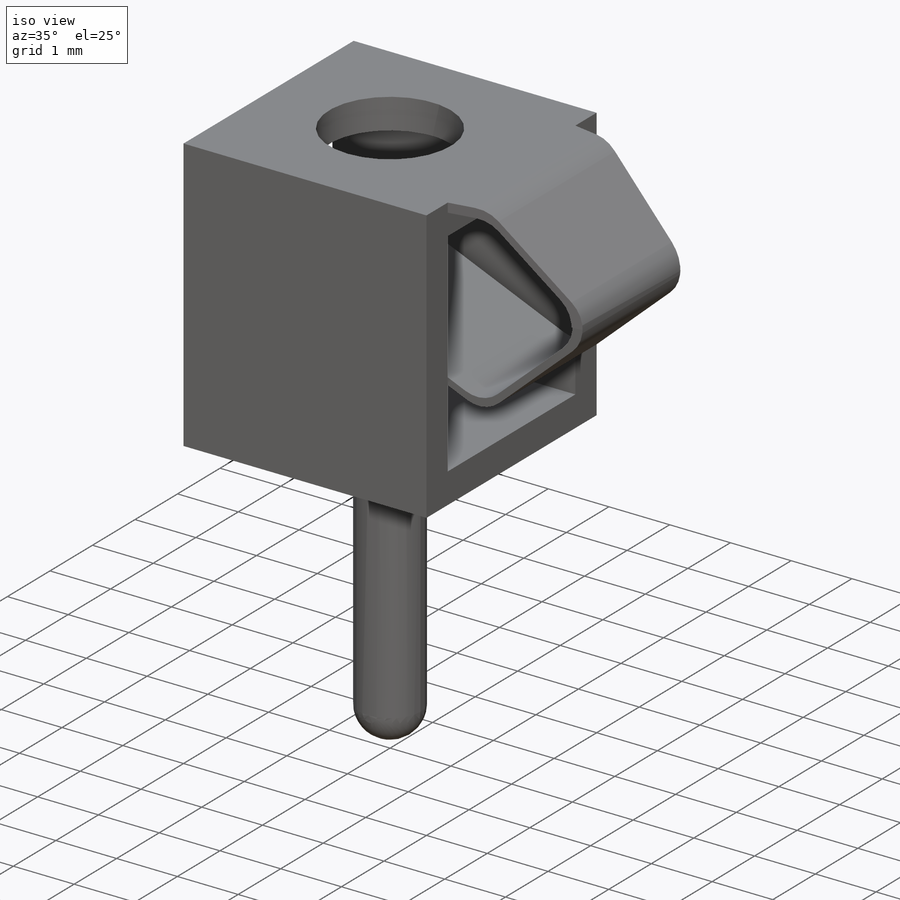
[diagram: iso view]
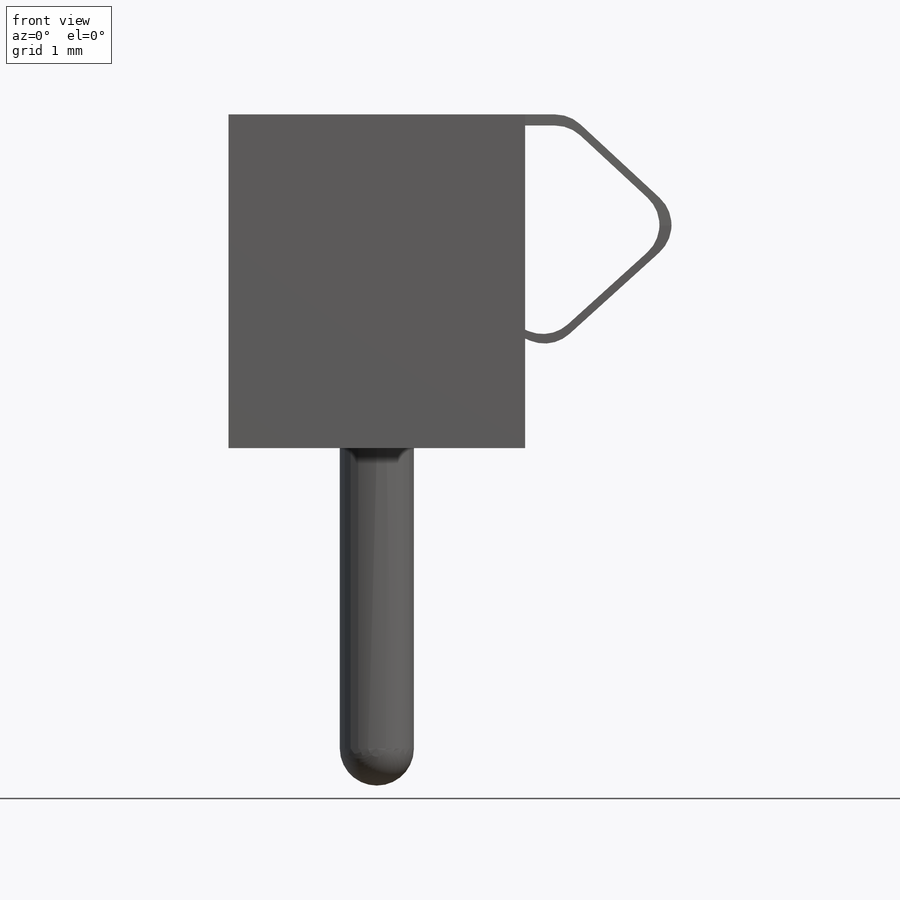
[diagram: front view]
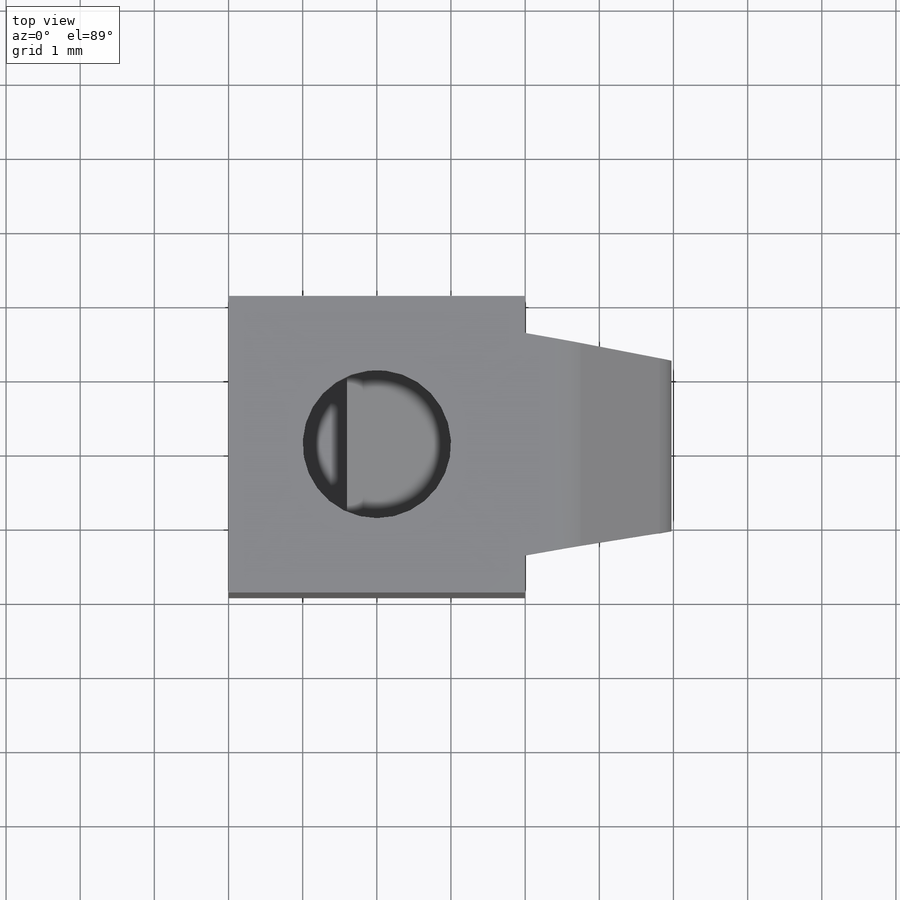
[diagram: top view]
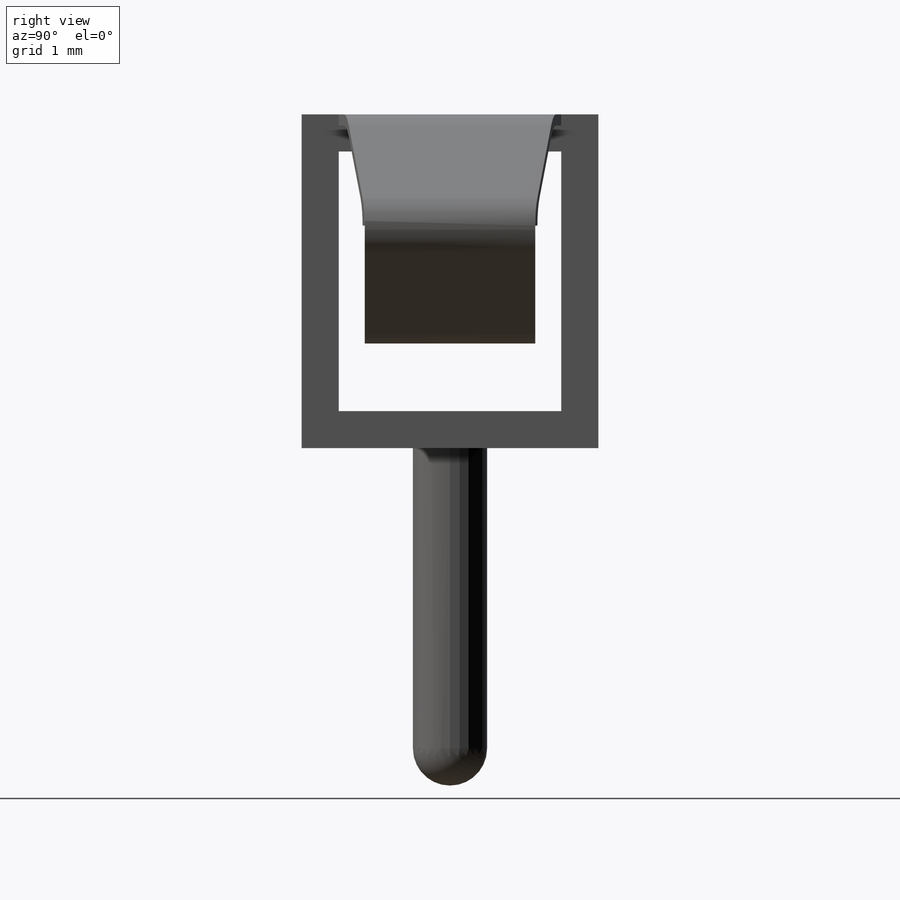
[diagram: right view]
SOLIDWORKS PART (.sldprt)
format: sldprt  version: not decoded by parser v0  size: 262,656 bytes
history: native  units: mm
features: sketch x6, extrude x3, cut_extrude x3, material x1, fillet x1 (+13 scaffold rows collapsed)
feature tree (27):
  scaffold x13  (default folders/planes/origin — collapsed)
  material  "Material <not specified>"
  sketch  "Sketch1"  dims[D1=4.5mm D2=4.0mm D3=3.0mm D4=3.5mm]
  extrude  "Boss-Extrude1"  Depth=4mm
  sketch  "Sketch2"  dims[D1=1.0mm]
  extrude  "Boss-Extrude2"  Depth=4.55mm
  fillet  "Fillet1"  Radius=0.5mm
  sketch  "Sketch3"  dims[D1=2.0mm]
  cut_extrude  "Cut-Extrude1"  Depth=2.55mm
  sketch  "Sketch5"  dims[c1.D11=0.5mm c1.D1=0.6mm c1.D2=0.15mm c1.D3=~1.461887mm c2.D3=~179.585401deg c3.D3=0.11mm c3.D4=0.11mm c3.D5=0.11mm c3.D6=~1.332981mm c4.D6=85.0deg c4.D7=2.2mm c4.D8=~1.137272mm c5.D8=115.0deg c5.D9=3.0mm c5.D10=2.5mm]
  extrude  "Boss-Extrude3"  Depth=0.5mm
  sketch  "Sketch6"  dims[D1=0.35mm]
  cut_extrude  "Cut-Extrude2"  Depth=1.5mm
  sketch  "Sketch7"  dims[D1=2.0mm]
  cut_extrude  "Cut-Extrude3"  Depth=7.5mm
decode coverage: 13 of 13 modeling features carry decoded parameters
note: ~ marks probable driven/reference dimensions
note: suppression state not decoded; provenance and decode notes live in map.json
